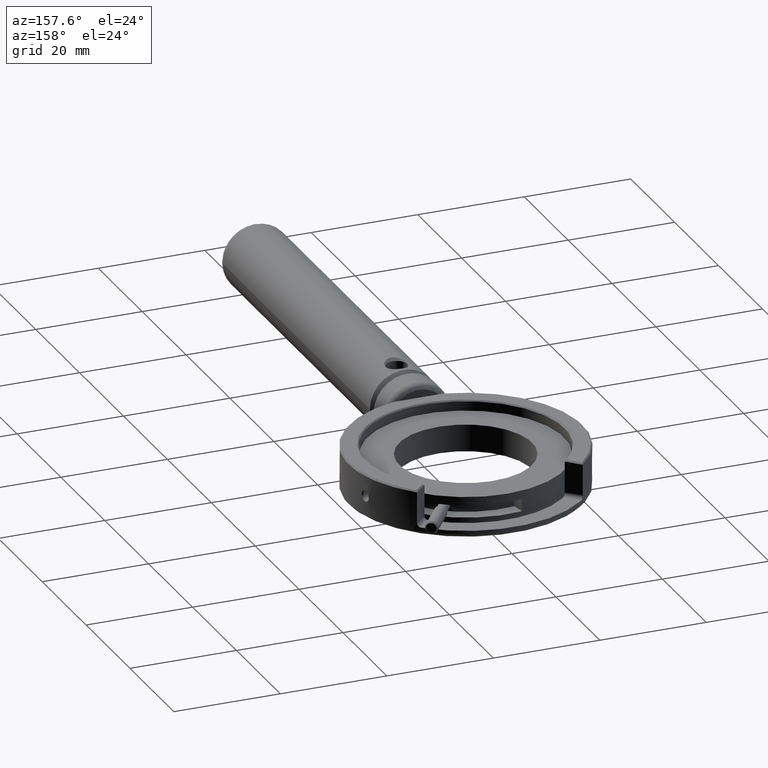
[diagram: clean part render]
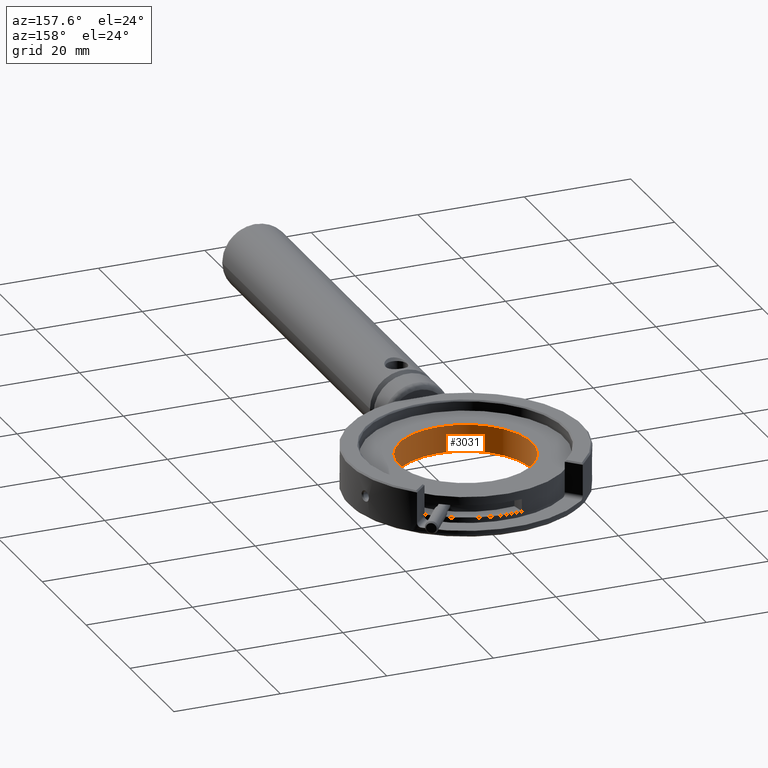
[diagram: same view with one face highlighted and labeled with its STEP entity id]
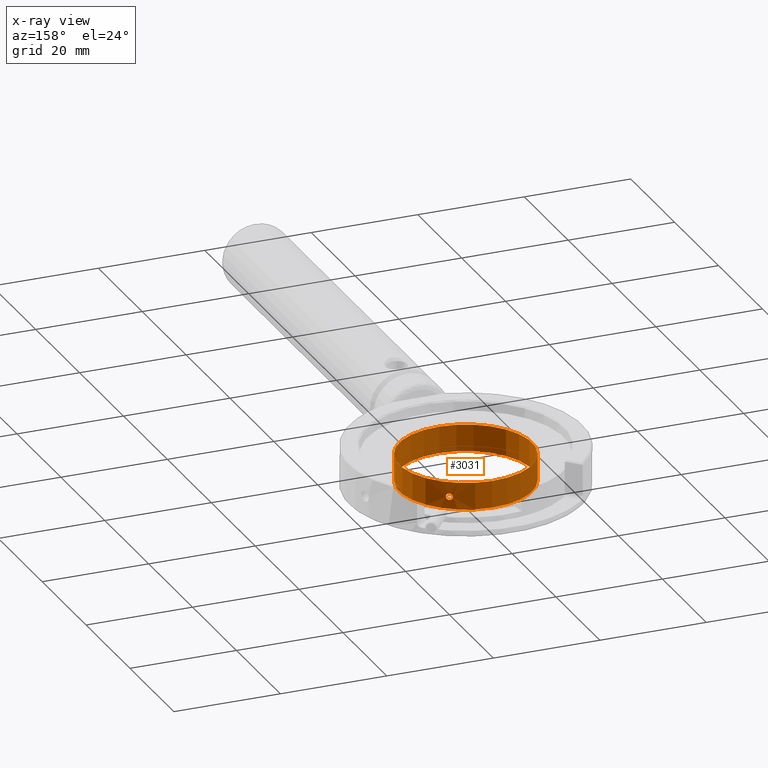
[diagram: x-ray of the same camera — body ghosted, the highlighted face saturated]
A machine part, auxiliary view. The second image highlights one B-rep face of the part: STEP entity #3031.
The next image is the same camera in x-ray: the body ghosted, the highlighted face saturated — about 0% of this face is hidden behind the body in this view.
In plain terms, the highlighted cylindrical surface (bore or boss wall) has radius 12.5 mm, axis along (-0, -0, -1).
Its self-contained STEP definition (entity closure, byte-faithful):
#10 = CARTESIAN_POINT ( 'NONE',  ( 6.793308146005728076, 69.51631981523311765, -0.7710978752651919121 ) ) ;
#95 = VERTEX_POINT ( 'NONE', #4428 ) ;
#470 = CARTESIAN_POINT ( 'NONE',  ( 7.052387677764632379, 69.34554929574125026, -0.1439960778007599584 ) ) ;
#490 = CARTESIAN_POINT ( 'NONE',  ( 0.03631047345557893158, 58.99999999999995026, -2.999999999999993339 ) ) ;
#508 = AXIS2_PLACEMENT_3D ( 'NONE', #6293, #945, #1594 ) ;
#584 = CARTESIAN_POINT ( 'NONE',  ( 7.377879487678447923, 69.11722219892368457, -1.314999999999959757 ) ) ;
#637 = CIRCLE ( 'NONE', #1416, 12.50000000000000355 ) ;
#853 = FACE_BOUND ( 'NONE', #980, .T. ) ;
#945 = DIRECTION ( 'NONE',  ( -1.065302022606572944E-15, -1.774820270857323644E-15, -1.000000000000000000 ) ) ;
#980 = EDGE_LOOP ( 'NONE', ( #3477 ) ) ;
#1001 = CARTESIAN_POINT ( 'NONE',  ( 7.573415081278259464, 68.97274596698645155, -0.1316281973452661513 ) ) ;
#1416 = AXIS2_PLACEMENT_3D ( 'NONE', #490, #4783, #2118 ) ;
#1573 = CARTESIAN_POINT ( 'NONE',  ( 6.897903934647702684, 69.44853756094494202, -1.073249403251924416 ) ) ;
#1587 = ORIENTED_EDGE ( 'NONE', *, *, #3387, .F. ) ;
#1594 = DIRECTION ( 'NONE',  ( -0.8132227135242089400, 0.5819525910315397343, -1.734723475976806601E-16 ) ) ;
#1648 = CIRCLE ( 'NONE', #5627, 12.50000000000000355 ) ;
#1681 = CARTESIAN_POINT ( 'NONE',  ( 7.809926939100012788, 68.78881438419250571, -0.6089020706868031318 ) ) ;
#1692 = EDGE_CURVE ( 'NONE', #95, #95, #5205, .T. ) ;
#2118 = DIRECTION ( 'NONE',  ( -0.8132227135242089400, 0.5819525910315397343, -1.734723475976806601E-16 ) ) ;
#2209 = CARTESIAN_POINT ( 'NONE',  ( 7.443291779230068350, 69.06937721587931378, -1.298738995257828988 ) ) ;
#2286 = VERTEX_POINT ( 'NONE', #4460 ) ;
#2322 = CARTESIAN_POINT ( 'NONE',  ( -10.12897344559702972, 66.27440738789421459, 2.060000000000004494 ) ) ;
#2668 = CARTESIAN_POINT ( 'NONE',  ( 7.809795851785306553, 68.78891848394641784, -0.8534775508678161815 ) ) ;
#2742 = CARTESIAN_POINT ( 'NONE',  ( 7.619882333847697531, 68.93693941321392060, -1.189580354619165670 ) ) ;
#3017 = FACE_OUTER_BOUND ( 'NONE', #5765, .T. ) ;
#3031 = ADVANCED_FACE ( 'NONE', ( #3549, #3017, #853 ), #6831, .F. ) ;
#3133 = CARTESIAN_POINT ( 'NONE',  ( 6.859482734694906547, 69.47355241897926703, -1.004369999870031060 ) ) ;
#3160 = EDGE_CURVE ( 'NONE', #2286, #2286, #637, .T. ) ;
#3204 = CARTESIAN_POINT ( 'NONE',  ( 7.043715147127102227, 69.35180601132081790, -1.248371544141913203 ) ) ;
#3245 = CARTESIAN_POINT ( 'NONE',  ( 7.177163760102923007, 69.25982182623143046, -0.08126115630132686729 ) ) ;
#3279 = CARTESIAN_POINT ( 'NONE',  ( 7.243556279546917054, 69.21334560731828844, -0.06500000000002921496 ) ) ;
#3387 = EDGE_CURVE ( 'NONE', #6139, #6139, #1648, .T. ) ;
#3477 = ORIENTED_EDGE ( 'NONE', *, *, #1692, .F. ) ;
#3549 = FACE_OUTER_BOUND ( 'NONE', #6255, .T. ) ;
#3689 = DIRECTION ( 'NONE',  ( -1.065302022606572944E-15, -1.774820270857323644E-15, -1.000000000000000000 ) ) ;
#3704 = CARTESIAN_POINT ( 'NONE',  ( 6.806938172352674066, 69.50759632563887180, -0.8530233450954218810 ) ) ;
#3850 = CARTESIAN_POINT ( 'NONE',  ( 7.445041024955656894, 69.06916054252120318, -0.06500000000002806311 ) ) ;
#4428 = CARTESIAN_POINT ( 'NONE',  ( 7.310717861350140012, 69.16528391905234230, -1.315000000000011493 ) ) ;
#4460 = CARTESIAN_POINT ( 'NONE',  ( -10.12897344559703505, 66.27440738789420038, -2.999999999999995559 ) ) ;
#4715 = CARTESIAN_POINT ( 'NONE',  ( 0.03631047345558432310, 58.99999999999996447, 2.060000000000006715 ) ) ;
#4783 = DIRECTION ( 'NONE',  ( 1.065302022606572944E-15, 1.774820270857323644E-15, 1.000000000000000000 ) ) ;
#4799 = CARTESIAN_POINT ( 'NONE',  ( 7.310717861350140900, 69.16528391905234230, -1.315000000000011715 ) ) ;
#4918 = CARTESIAN_POINT ( 'NONE',  ( 6.994830571723364976, 69.38423444927742878, -0.1904198847116319038 ) ) ;
#5205 = B_SPLINE_CURVE_WITH_KNOTS ( 'NONE', 3,
 ( #4799, #584, #2209, #6563, #2742, #5880, #2668, #1681, #5992, #5916, #5341, #1001, #3850, #3279, #3245, #470, #4918, #6983, #7022, #10, #3704, #3133, #1573, #3204, #5377, #6028 ),
 .UNSPECIFIED., .T., .F.,
 ( 4, 2, 2, 2, 2, 2, 2, 2, 2, 2, 2, 2, 4 ),
 ( 0.000000000000000000, 0.0002442414457621042254, 0.0004884828915242084508, 0.0009769657830484182025, 0.001221207228810523024, 0.001465448674572627846, 0.001953931566096839441, 0.002198173011858944263, 0.002442414457621048651, 0.002930897349145258294, 0.003175138794907362682, 0.003419380240669467070, 0.003907863132193676280 ),
 .UNSPECIFIED. ) ;
#5341 = CARTESIAN_POINT ( 'NONE',  ( 7.712020828988897847, 68.86594509085597338, -0.3067503777078297578 ) ) ;
#5377 = CARTESIAN_POINT ( 'NONE',  ( 7.176394608693525967, 69.26140735930964354, -1.315000000000115632 ) ) ;
#5627 = AXIS2_PLACEMENT_3D ( 'NONE', #4715, #3689, #6895 ) ;
#5765 = EDGE_LOOP ( 'NONE', ( #1587 ) ) ;
#5880 = CARTESIAN_POINT ( 'NONE',  ( 7.756955698081362982, 68.83132471083753501, -1.016640052635420899 ) ) ;
#5916 = CARTESIAN_POINT ( 'NONE',  ( 7.748094863508135255, 68.83765020233914811, -0.3756298054774434569 ) ) ;
#5992 = CARTESIAN_POINT ( 'NONE',  ( 7.797272120069809631, 68.79890066803545778, -0.5269765485467677868 ) ) ;
#6028 = CARTESIAN_POINT ( 'NONE',  ( 7.310717861350140900, 69.16528391905234230, -1.315000000000011715 ) ) ;
#6139 = VERTEX_POINT ( 'NONE', #2322 ) ;
#6255 = EDGE_LOOP ( 'NONE', ( #6311 ) ) ;
#6293 = CARTESIAN_POINT ( 'NONE',  ( 0.03631047345558432310, 58.99999999999996447, 2.060000000000006715 ) ) ;
#6311 = ORIENTED_EDGE ( 'NONE', *, *, #3160, .F. ) ;
#6563 = CARTESIAN_POINT ( 'NONE',  ( 7.564694719971290837, 68.97893582585716388, -1.236004144955972661 ) ) ;
#6831 = CYLINDRICAL_SURFACE ( 'NONE', #508, 12.50000000000000355 ) ;
#6895 = DIRECTION ( 'NONE',  ( -0.8132227135242089400, 0.5819525910315397343, -1.734723475976806601E-16 ) ) ;
#6983 = CARTESIAN_POINT ( 'NONE',  ( 6.850636520712652278, 69.47989831744105516, -0.3633601566166602126 ) ) ;
#7022 = CARTESIAN_POINT ( 'NONE',  ( 6.793448974743233393, 69.51622932836997393, -0.5265225572276603927 ) ) ;